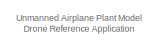
[diagram: root canvas - part 1/2, top center region]
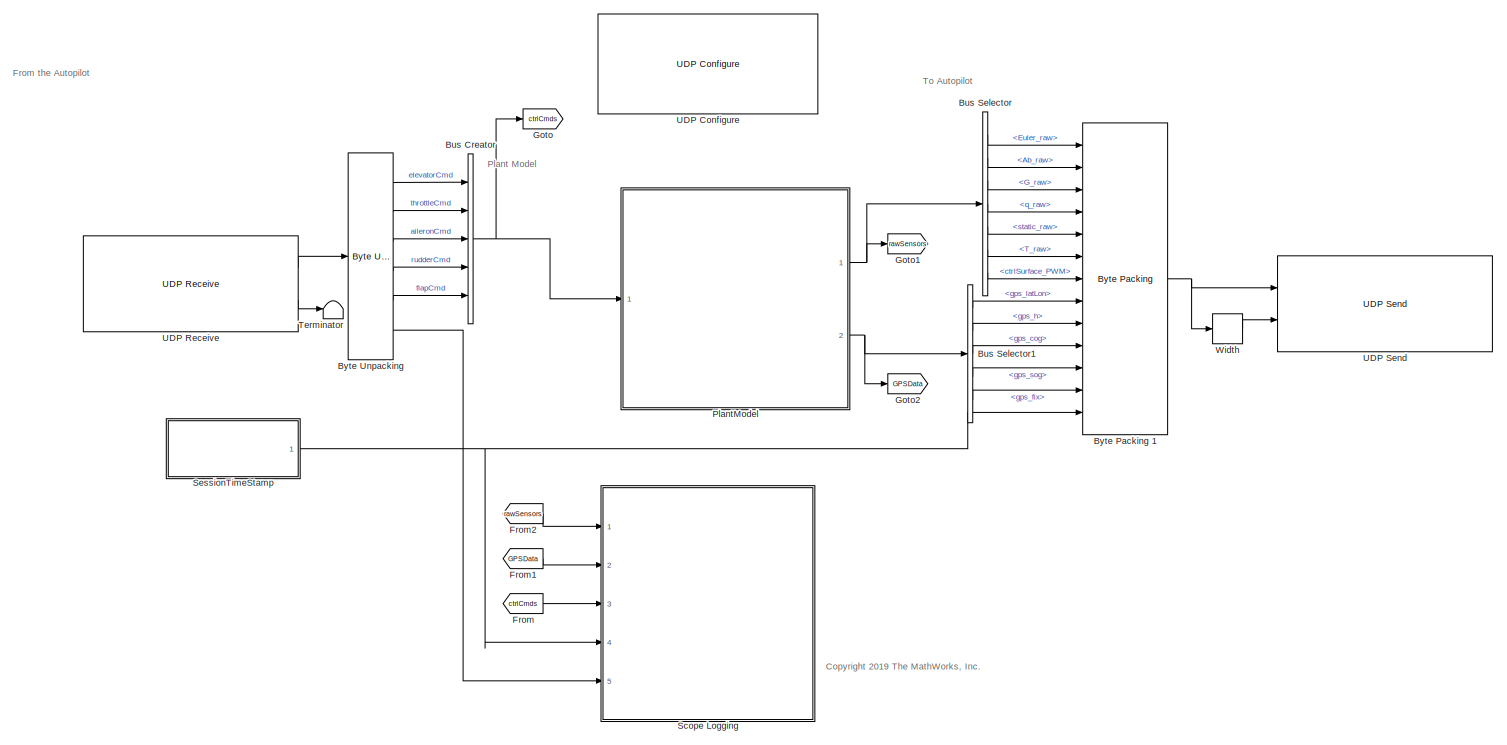
[diagram: root canvas - part 2/2, most of the canvas]
MODEL slx_c26612ba7e6e
KIND model
CONFIG InitFcn = plantConfigSet = slrt_plant_configset;\n
WORKSPACE source: MATLAB code (in-file)
WORKSPACE cmdLim = Simulink.Parameter
WORKSPACE code: cmdLim.Value = 15;
WORKSPACE code: cmdLim.Description = 'Limit for controlling the maximum surface command angle.';
WORKSPACE code: cmdLim.Min = 0;
WORKSPACE code: cmdLim.Max = 90;
WORKSPACE code: cmdLim.DocUnits = 'deg';
WORKSPACE dispGain = Simulink.Parameter
WORKSPACE code: dispGain.Value = 0.75;
WORKSPACE code: dispGain.Description = 'Gain applied to the displacement error.';
WORKSPACE code: dispGain.Min = 0;
WORKSPACE code: dispGain.Max = [];
WORKSPACE code: dispGain.DocUnits = 'deg/sec/deg';
WORKSPACE dispLim = Simulink.Parameter
WORKSPACE code: dispLim.Value = 30;
WORKSPACE code: dispLim.Description = 'Limit for controlling the maximum commanded angle.';
WORKSPACE code: dispLim.Min = 0;
WORKSPACE code: dispLim.Max = 180;
WORKSPACE code: dispLim.DocUnits = 'deg';
WORKSPACE intGain = Simulink.Parameter
WORKSPACE code: intGain.Value = 0.5;
WORKSPACE code: intGain.Description = 'Gain applied to the integral error.';
WORKSPACE code: intGain.Min = 0;
WORKSPACE code: intGain.Max = [];
WORKSPACE code: intGain.DocUnits = 'deg/sec/deg/sec';
WORKSPACE intLim = Simulink.Parameter
WORKSPACE code: intLim.Value = 5;
WORKSPACE code: intLim.Description = 'Limit for controlling the maximum commanded angle.';
WORKSPACE code: intLim.Min = 0;
WORKSPACE code: intLim.Max = 90;
WORKSPACE code: intLim.DocUnits = 'deg';
WORKSPACE rateGain = Simulink.Parameter
WORKSPACE code: rateGain.Value = 2;
WORKSPACE code: rateGain.Description = 'Gain applied to the rate error.';
WORKSPACE code: rateGain.Min = 0;
WORKSPACE code: rateGain.Max = [];
WORKSPACE code: rateGain.DocUnits = 'deg/deg/sec';
WORKSPACE rateLim = Simulink.Parameter
WORKSPACE code: rateLim.Value = 6;
WORKSPACE code: rateLim.Description = 'Limit for controlling the maximum commanded angle.';
WORKSPACE code: rateLim.Min = 0;
WORKSPACE code: rateLim.Max = 180;
WORKSPACE code: rateLim.DocUnits = 'deg/sec';
WORKSPACE hdgGain = Simulink.Parameter
WORKSPACE code: hdgGain.Value = 0.015;
BLOCK [BusCreator] Bus Creator
  DisplayOption = bar
  InheritFromInputs = on
  Inputs = 5
  OutDataTypeStr = Bus: ctrlCmdsBus
  Ports = [5, 1]
BLOCK [BusSelector] Bus Selector
  OutputAsBus = off
  OutputSignals = Euler_raw,Ab_raw,G_raw,q_raw,static_raw,T_raw,ctrlSurface_PWM
  Ports = [1, 7]
BLOCK [BusSelector] Bus Selector1
  OutputAsBus = off
  OutputSignals = gps_latLon,gps_h,gps_cog,gps_sog,gps_fix
  Ports = [1, 5]
BLOCK [Reference] Byte Packing 1  REF=xpcutilitieslib/Byte Packing 
  Ports = [13, 1]
  SourceBlock = xpcutilitieslib/Byte Packing
  SourceProductBaseCode = XP
  SourceProductName = Simulink Real-Time
  SourceType = xpcbytepacking
BLOCK [Reference] Byte Unpacking   REF=xpcutilitieslib/Byte Unpacking 
  Ports = [1, 6]
  SourceBlock = xpcutilitieslib/Byte Unpacking
  SourceProductBaseCode = XP
  SourceProductName = Simulink Real-Time
  SourceType = xpcbytepacking
BLOCK [From] From
  AttributesFormatString = %<gotoTag>
  GotoTag = ctrlCmds
BLOCK [From] From1
  AttributesFormatString = %<gotoTag>
  GotoTag = GPSData
BLOCK [From] From2
  AttributesFormatString = %<gotoTag>
  GotoTag = rawSensors
BLOCK [Goto] Goto
  AttributesFormatString = %<gotoTag>
  GotoTag = ctrlCmds
BLOCK [Goto] Goto1
  AttributesFormatString = %<gotoTag>
  GotoTag = rawSensors
BLOCK [Goto] Goto2
  AttributesFormatString = %<gotoTag>
  GotoTag = GPSData
BLOCK [ModelReference] PlantModel
  ModelNameDialog = PlantModel.slx
  ModelReferenceVersion = 1.373
  Ports = [1, 2]
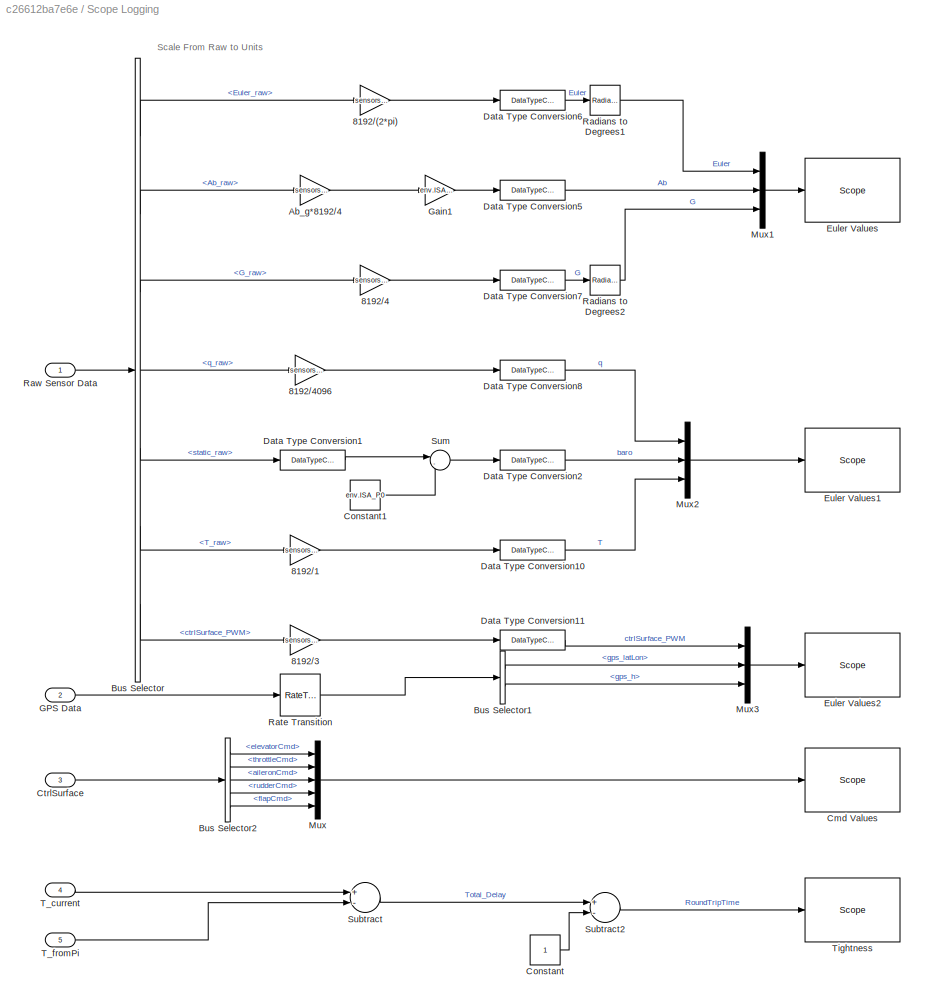
BLOCK [SubSystem] Scope Logging
  Ports = [5]
  RequestExecContextInheritance = off
BLOCK [Gain] Scope Logging/8192//(2*pi)
  AttributesFormatString = %<Gain>
  Gain = sensors.max_euler/sensors.bit_scale
  OutDataTypeStr = single
  ParamDataTypeStr = Inherit: Inherit via internal rule
  SaturateOnIntegerOverflow = off
BLOCK [Gain] Scope Logging/8192//1
  AttributesFormatString = %<Gain>
  Gain = sensors.max_temp/sensors.bit_scale
  OutDataTypeStr = single
  ParamDataTypeStr = Inherit: Inherit via internal rule
  SaturateOnIntegerOverflow = off
BLOCK [Gain] Scope Logging/8192//3
  AttributesFormatString = %<Gain>
  Gain = sensors.max_ctrlSrfc/sensors.bit_scale
  OutDataTypeStr = single
  ParamDataTypeStr = Inherit: Inherit via internal rule
  SaturateOnIntegerOverflow = off
BLOCK [Gain] Scope Logging/8192//4
  AttributesFormatString = %<Gain>
  Gain = sensors.max_gyro/sensors.bit_scale
  OutDataTypeStr = single
  ParamDataTypeStr = Inherit: Inherit via internal rule
  SaturateOnIntegerOverflow = off
BLOCK [Gain] Scope Logging/8192//4096
  AttributesFormatString = %<Gain>
  Gain = sensors.max_dyn/sensors.bit_scale
  OutDataTypeStr = single
  ParamDataTypeStr = Inherit: Inherit via internal rule
  SaturateOnIntegerOverflow = off
BLOCK [Gain] Scope Logging/Ab_g*8192//4
  AttributesFormatString = %<Gain>
  Gain = sensors.max_accel/sensors.bit_scale
  OutDataTypeStr = single
  ParamDataTypeStr = Inherit: Inherit via internal rule
  SaturateOnIntegerOverflow = off
BLOCK [BusSelector] Scope Logging/Bus Selector
  OutputAsBus = off
  OutputSignals = Euler_raw,Ab_raw,G_raw,q_raw,static_raw,T_raw,ctrlSurface_PWM
  Ports = [1, 7]
BLOCK [BusSelector] Scope Logging/Bus Selector1
  OutputAsBus = off
  OutputSignals = gps_latLon,gps_h
  Ports = [1, 2]
BLOCK [BusSelector] Scope Logging/Bus Selector2
  OutputAsBus = off
  OutputSignals = elevatorCmd,throttleCmd,aileronCmd,rudderCmd,flapCmd
  Ports = [1, 5]
BLOCK [Reference] Scope Logging/Cmd Values  REF=slrtlib/Displays and
Logging/Scope 
  Ports = [1]
  SourceBlock = slrtlib/Displays and\nLogging/Scope
  SourceProductBaseCode = XP
  SourceProductName = Simulink Real-Time
  SourceType = xpcscopeblock
BLOCK [Constant] Scope Logging/Constant
BLOCK [Constant] Scope Logging/Constant1
  AttributesFormatString = %<Value>
  Value = env.ISA_P0
BLOCK [Inport] Scope Logging/CtrlSurface
  IconDisplay = Port number
  Port = 3
BLOCK [DataTypeConversion] Scope Logging/Data Type Conversion1
  OutDataTypeStr = single
  RndMeth = Floor
  SaturateOnIntegerOverflow = off
BLOCK [DataTypeConversion] Scope Logging/Data Type Conversion10
  OutDataTypeStr = single
  RndMeth = Floor
  SaturateOnIntegerOverflow = off
BLOCK [DataTypeConversion] Scope Logging/Data Type Conversion11
  OutDataTypeStr = single
  RndMeth = Floor
  SaturateOnIntegerOverflow = off
BLOCK [DataTypeConversion] Scope Logging/Data Type Conversion2
  OutDataTypeStr = single
  RndMeth = Floor
  SaturateOnIntegerOverflow = off
BLOCK [DataTypeConversion] Scope Logging/Data Type Conversion5
  OutDataTypeStr = single
  RndMeth = Floor
  SaturateOnIntegerOverflow = off
BLOCK [DataTypeConversion] Scope Logging/Data Type Conversion6
  OutDataTypeStr = single
  RndMeth = Floor
  SaturateOnIntegerOverflow = off
BLOCK [DataTypeConversion] Scope Logging/Data Type Conversion7
  OutDataTypeStr = single
  RndMeth = Floor
  SaturateOnIntegerOverflow = off
BLOCK [DataTypeConversion] Scope Logging/Data Type Conversion8
  OutDataTypeStr = single
  RndMeth = Floor
  SaturateOnIntegerOverflow = off
BLOCK [Reference] Scope Logging/Euler Values  REF=slrtlib/Displays and
Logging/Scope 
  Ports = [1]
  SourceBlock = slrtlib/Displays and\nLogging/Scope
  SourceProductBaseCode = XP
  SourceProductName = Simulink Real-Time
  SourceType = xpcscopeblock
BLOCK [Reference] Scope Logging/Euler Values1  REF=slrtlib/Displays and
Logging/Scope 
  Ports = [1]
  SourceBlock = slrtlib/Displays and\nLogging/Scope
  SourceProductBaseCode = XP
  SourceProductName = Simulink Real-Time
  SourceType = xpcscopeblock
BLOCK [Reference] Scope Logging/Euler Values2  REF=slrtlib/Displays and
Logging/Scope 
  Ports = [1]
  SourceBlock = slrtlib/Displays and\nLogging/Scope
  SourceProductBaseCode = XP
  SourceProductName = Simulink Real-Time
  SourceType = xpcscopeblock
BLOCK [Inport] Scope Logging/GPS Data
  IconDisplay = Port number
  Port = 2
BLOCK [Gain] Scope Logging/Gain1
  AttributesFormatString = %<Gain>
  Gain = env.ISA_g
  OutDataTypeStr = single
  ParamDataTypeStr = Inherit: Inherit via internal rule
  SaturateOnIntegerOverflow = off
BLOCK [Mux] Scope Logging/Mux
  DisplayOption = bar
  Inputs = 5
  Ports = [5, 1]
BLOCK [Mux] Scope Logging/Mux1
  DisplayOption = bar
  Inputs = 3
  Ports = [3, 1]
BLOCK [Mux] Scope Logging/Mux2
  DisplayOption = bar
  Inputs = 3
  Ports = [3, 1]
BLOCK [Mux] Scope Logging/Mux3
  DisplayOption = bar
  Inputs = 3
  Ports = [3, 1]
BLOCK [Reference] Scope Logging/Radians to Degrees1  REF=simulink_extras/Transformations/Radians
to Degrees
  Ports = [1, 1]
  SourceBlock = simulink_extras/Transformations/Radians\nto Degrees
  SourceProductBaseCode = SL
  SourceProductName = Simulink
  SourceType = RadiansToDegrees
BLOCK [Reference] Scope Logging/Radians to Degrees2  REF=simulink_extras/Transformations/Radians
to Degrees
  Ports = [1, 1]
  SourceBlock = simulink_extras/Transformations/Radians\nto Degrees
  SourceProductBaseCode = SL
  SourceProductName = Simulink
  SourceType = RadiansToDegrees
BLOCK [RateTransition] Scope Logging/Rate Transition
  Deterministic = off
BLOCK [Inport] Scope Logging/Raw Sensor Data
  IconDisplay = Port number
BLOCK [Sum] Scope Logging/Subtract
  InputSameDT = off
  Inputs = +-
  OutDataTypeStr = Inherit: Inherit via internal rule
  Ports = [2, 1]
  SaturateOnIntegerOverflow = off
BLOCK [Sum] Scope Logging/Subtract2
  InputSameDT = off
  Inputs = +-
  OutDataTypeStr = Inherit: Inherit via internal rule
  Ports = [2, 1]
  SaturateOnIntegerOverflow = off
BLOCK [Sum] Scope Logging/Sum
  IconShape = round
  InputSameDT = off
  Inputs = |-+
  OutDataTypeStr = Inherit: Inherit via internal rule
  Ports = [2, 1]
  SaturateOnIntegerOverflow = off
BLOCK [Inport] Scope Logging/T_current
  IconDisplay = Port number
  Port = 4
BLOCK [Inport] Scope Logging/T_fromPi
  IconDisplay = Port number
  Port = 5
BLOCK [Reference] Scope Logging/Tightness  REF=slrtlib/Displays and
Logging/Scope 
  Ports = [1]
  SourceBlock = slrtlib/Displays and\nLogging/Scope
  SourceProductBaseCode = XP
  SourceProductName = Simulink Real-Time
  SourceType = xpcscopeblock
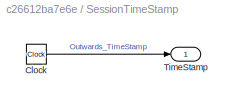
BLOCK [SubSystem] SessionTimeStamp
  Ports = [0, 1]
  RequestExecContextInheritance = off
BLOCK [Clock] SessionTimeStamp/Clock
  Decimation = 1
BLOCK [Outport] SessionTimeStamp/TimeStamp
  IconDisplay = Port number
BLOCK [Terminator] Terminator
BLOCK [Reference] UDP Configure  REF=xpcrtudplib/UDP Configure
  Ports = []
  Priority = -1
  SourceBlock = xpcrtudplib/UDP Configure
  SourceProductBaseCode = XP
  SourceProductName = Simulink Real-Time
  SourceType = slrtudpconfigure
BLOCK [Reference] UDP Receive  REF=xpcrtudplib/UDP Receive
  Ports = [0, 2]
  SourceBlock = xpcrtudplib/UDP Receive
  SourceProductBaseCode = XP
  SourceProductName = Simulink Real-Time
  SourceType = slrtudpreceive
BLOCK [Reference] UDP Send  REF=xpcrtudplib/UDP Send
  Ports = [2]
  SourceBlock = xpcrtudplib/UDP Send
  SourceProductBaseCode = XP
  SourceProductName = Simulink Real-Time
  SourceType = slrtudpsend
BLOCK [Width] Width
ANNOTATION (root): Unmanned Airplane Plant Model Drone Reference Application
ANNOTATION (root): <copyright redacted>
ANNOTATION (root): From the Autopilot
ANNOTATION (root): Plant Model
ANNOTATION (root): To Autopilot
ANNOTATION Scope Logging: Scale From Raw to Units
NET Bus Creator:1 -> Goto:1, PlantModel:1
LINE Bus Selector1:1 -> Byte Packing 1:8
LINE Bus Selector1:2 -> Byte Packing 1:9
LINE Bus Selector1:3 -> Byte Packing 1:10
LINE Bus Selector1:4 -> Byte Packing 1:11
LINE Bus Selector1:5 -> Byte Packing 1:12
LINE Bus Selector:1 -> Byte Packing 1:1
LINE Bus Selector:2 -> Byte Packing 1:2
LINE Bus Selector:3 -> Byte Packing 1:3
LINE Bus Selector:4 -> Byte Packing 1:4
LINE Bus Selector:5 -> Byte Packing 1:5
LINE Bus Selector:6 -> Byte Packing 1:6
LINE Bus Selector:7 -> Byte Packing 1:7
NET Byte Packing 1:1 -> UDP Send:1, Width:1
LINE Byte Unpacking :1 -> Bus Creator:1
LINE Byte Unpacking :2 -> Bus Creator:2
LINE Byte Unpacking :3 -> Bus Creator:3
LINE Byte Unpacking :4 -> Bus Creator:4
LINE Byte Unpacking :5 -> Bus Creator:5
LINE Byte Unpacking :6 -> Scope Logging:5
LINE From1:1 -> Scope Logging:2
LINE From2:1 -> Scope Logging:1
LINE From:1 -> Scope Logging:3
NET PlantModel:1 -> Bus Selector:1, Goto1:1
NET PlantModel:2 -> Bus Selector1:1, Goto2:1
LINE Scope Logging/8192//(2*pi):1 -> Scope Logging/Data Type Conversion6:1
LINE Scope Logging/8192//1:1 -> Scope Logging/Data Type Conversion10:1
LINE Scope Logging/8192//3:1 -> Scope Logging/Data Type Conversion11:1
LINE Scope Logging/8192//4096:1 -> Scope Logging/Data Type Conversion8:1
LINE Scope Logging/8192//4:1 -> Scope Logging/Data Type Conversion7:1
LINE Scope Logging/Ab_g*8192//4:1 -> Scope Logging/Gain1:1
LINE Scope Logging/Bus Selector1:1 -> Scope Logging/Mux3:2
LINE Scope Logging/Bus Selector1:2 -> Scope Logging/Mux3:3
LINE Scope Logging/Bus Selector2:1 -> Scope Logging/Mux:1
LINE Scope Logging/Bus Selector2:2 -> Scope Logging/Mux:2
LINE Scope Logging/Bus Selector2:3 -> Scope Logging/Mux:3
LINE Scope Logging/Bus Selector2:4 -> Scope Logging/Mux:4
LINE Scope Logging/Bus Selector2:5 -> Scope Logging/Mux:5
LINE Scope Logging/Bus Selector:1 -> Scope Logging/8192//(2*pi):1
LINE Scope Logging/Bus Selector:2 -> Scope Logging/Ab_g*8192//4:1
LINE Scope Logging/Bus Selector:3 -> Scope Logging/8192//4:1
LINE Scope Logging/Bus Selector:4 -> Scope Logging/8192//4096:1
LINE Scope Logging/Bus Selector:5 -> Scope Logging/Data Type Conversion1:1
LINE Scope Logging/Bus Selector:6 -> Scope Logging/8192//1:1
LINE Scope Logging/Bus Selector:7 -> Scope Logging/8192//3:1
LINE Scope Logging/Constant1:1 -> Scope Logging/Sum:2
LINE Scope Logging/Constant:1 -> Scope Logging/Subtract2:2
LINE Scope Logging/CtrlSurface:1 -> Scope Logging/Bus Selector2:1
LINE Scope Logging/Data Type Conversion10:1 -> Scope Logging/Mux2:3
LINE Scope Logging/Data Type Conversion11:1 -> Scope Logging/Mux3:1
LINE Scope Logging/Data Type Conversion1:1 -> Scope Logging/Sum:1
LINE Scope Logging/Data Type Conversion2:1 -> Scope Logging/Mux2:2
LINE Scope Logging/Data Type Conversion5:1 -> Scope Logging/Mux1:2
LINE Scope Logging/Data Type Conversion6:1 -> Scope Logging/Radians to Degrees1:1
LINE Scope Logging/Data Type Conversion7:1 -> Scope Logging/Radians to Degrees2:1
LINE Scope Logging/Data Type Conversion8:1 -> Scope Logging/Mux2:1
LINE Scope Logging/GPS Data:1 -> Scope Logging/Rate Transition:1
LINE Scope Logging/Gain1:1 -> Scope Logging/Data Type Conversion5:1
LINE Scope Logging/Mux1:1 -> Scope Logging/Euler Values:1
LINE Scope Logging/Mux2:1 -> Scope Logging/Euler Values1:1
LINE Scope Logging/Mux3:1 -> Scope Logging/Euler Values2:1
LINE Scope Logging/Mux:1 -> Scope Logging/Cmd Values:1
LINE Scope Logging/Radians to Degrees1:1 -> Scope Logging/Mux1:1
LINE Scope Logging/Radians to Degrees2:1 -> Scope Logging/Mux1:3
LINE Scope Logging/Rate Transition:1 -> Scope Logging/Bus Selector1:1
LINE Scope Logging/Raw Sensor Data:1 -> Scope Logging/Bus Selector:1
LINE Scope Logging/Subtract2:1 -> Scope Logging/Tightness:1
LINE Scope Logging/Subtract:1 -> Scope Logging/Subtract2:1
LINE Scope Logging/Sum:1 -> Scope Logging/Data Type Conversion2:1
LINE Scope Logging/T_current:1 -> Scope Logging/Subtract:1
LINE Scope Logging/T_fromPi:1 -> Scope Logging/Subtract:2
LINE SessionTimeStamp/Clock:1 -> SessionTimeStamp/TimeStamp:1
NET SessionTimeStamp:1 -> Byte Packing 1:13, Scope Logging:4
LINE UDP Receive:1 -> Byte Unpacking :1
LINE UDP Receive:2 -> Terminator:1
LINE Width:1 -> UDP Send:2
note: NET lines group one-source signal fan-out (src -> all destinations, sorted); 1:1 wires keep LINE
